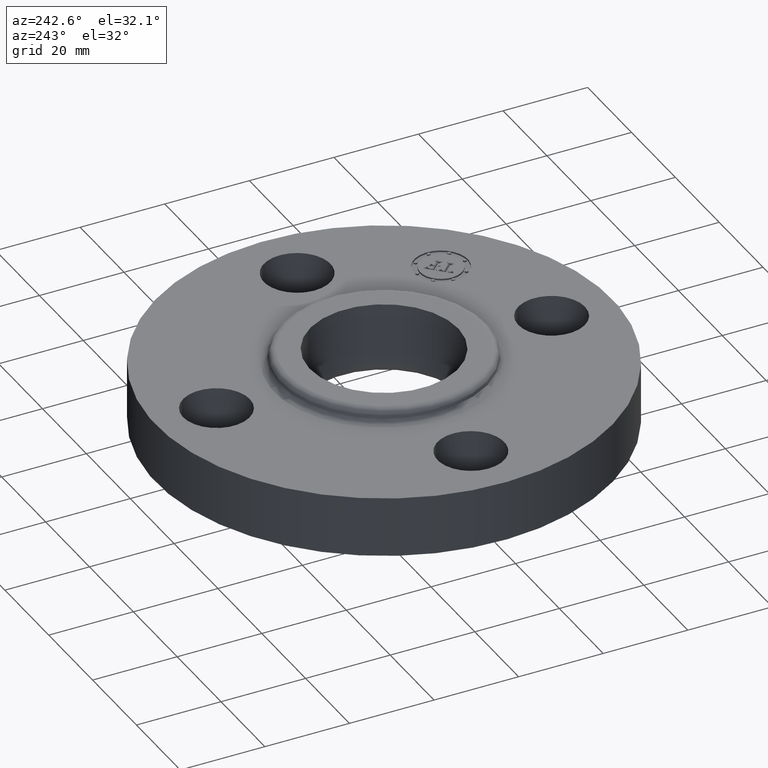
[diagram: clean part render]
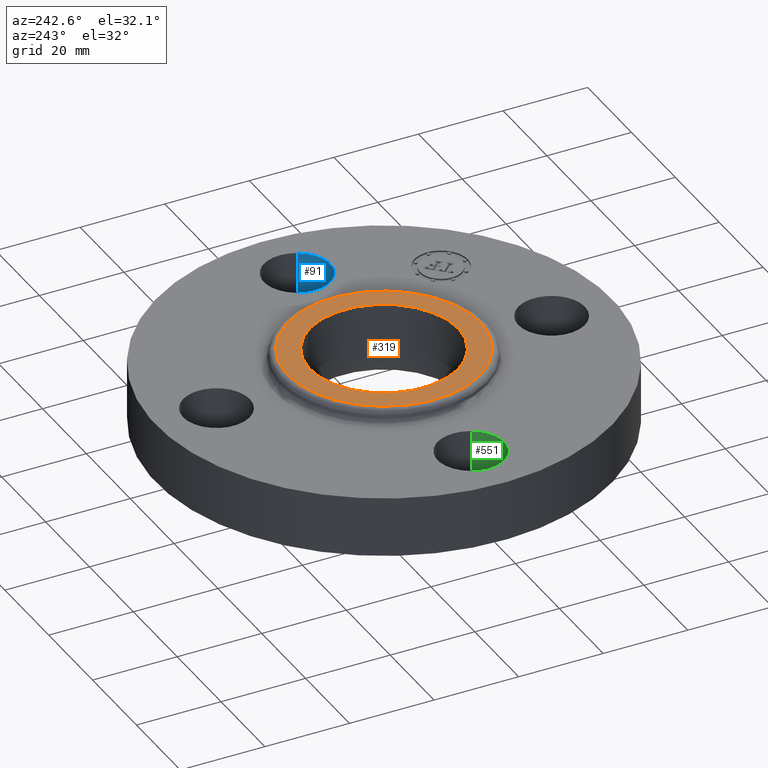
[diagram: same view with three faces highlighted in distinct colors, each labeled with its STEP entity id]
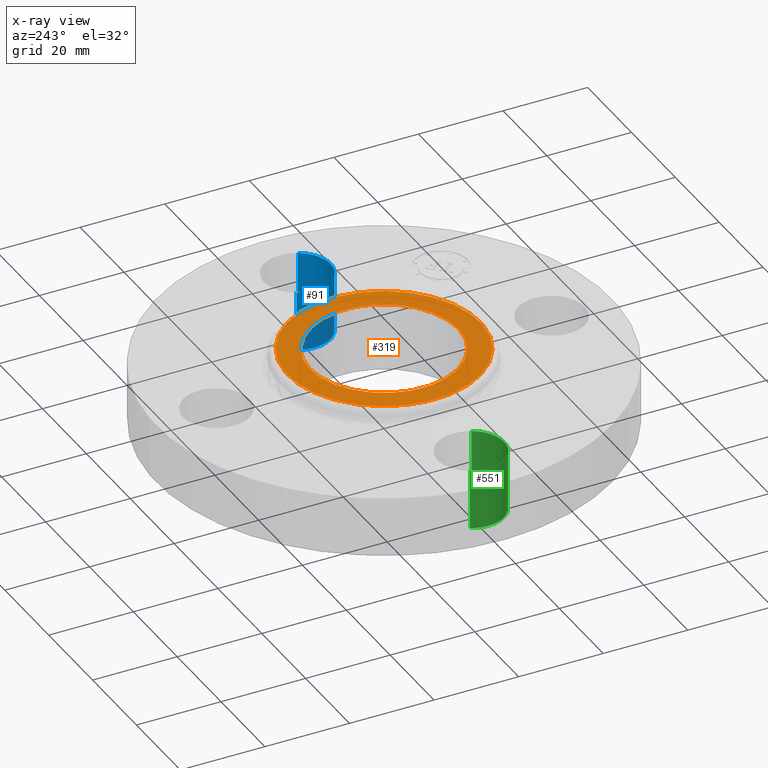
[diagram: x-ray of the same camera — body ghosted, the three highlighted faces saturated]
A machine part, auxiliary view with three faces highlighted in distinct colors.
The next image is the same camera in x-ray (body ghosted, the three faces saturated) — at least one of them is partly hidden behind the body in this view.
Their STEP definitions:

[orange] entity #319 — the highlighted planar face has unit normal (0, 0, -1).
#263=AXIS2_PLACEMENT_3D('Circle Axis2P3D',#261,#262,$) ;
#282=AXIS2_PLACEMENT_3D('Circle Axis2P3D',#280,#281,$) ;
#295=AXIS2_PLACEMENT_3D('Plane Axis2P3D',#292,#293,#294) ;
#303=AXIS2_PLACEMENT_3D('Circle Axis2P3D',#301,#302,$) ;
#312=AXIS2_PLACEMENT_3D('Circle Axis2P3D',#310,#311,$) ;
#258=CARTESIAN_POINT('Vertex',(0.42991598939,0.786955939946,0.690000000003)) ;
#261=CARTESIAN_POINT('Axis2P3D Location',(0.,0.,0.690000000003)) ;
#265=CARTESIAN_POINT('Vertex',(-0.42991598939,-0.786955939946,0.690000000003)) ;
#280=CARTESIAN_POINT('Axis2P3D Location',(0.,0.,0.690000000003)) ;
#292=CARTESIAN_POINT('Axis2P3D Location',(0.,0.896731514641,0.690000000003)) ;
#301=CARTESIAN_POINT('Axis2P3D Location',(0.,0.,0.690000000003)) ;
#305=CARTESIAN_POINT('Vertex',(-0.330803621638,-0.605531967707,0.690000000003)) ;
#307=CARTESIAN_POINT('Vertex',(0.330803621638,0.605531967707,0.690000000003)) ;
#310=CARTESIAN_POINT('Axis2P3D Location',(0.,0.,0.690000000003)) ;
#262=DIRECTION('Axis2P3D Direction',(0.,0.,-0.0393700787402)) ;
#281=DIRECTION('Axis2P3D Direction',(0.,0.,-0.0393700787402)) ;
#293=DIRECTION('Axis2P3D Direction',(0.,0.,-0.0393700787402)) ;
#294=DIRECTION('Axis2P3D XDirection',(0.0393700787402,0.,0.)) ;
#302=DIRECTION('Axis2P3D Direction',(0.,0.,-0.0393700787402)) ;
#311=DIRECTION('Axis2P3D Direction',(0.,0.,-0.0393700787402)) ;
#298=ORIENTED_EDGE('',*,*,#267,.F.) ;
#299=ORIENTED_EDGE('',*,*,#284,.F.) ;
#316=ORIENTED_EDGE('',*,*,#309,.T.) ;
#317=ORIENTED_EDGE('',*,*,#314,.T.) ;
#318=FACE_BOUND('',#315,.T.) ;
#319=ADVANCED_FACE('PartBody',(#300,#318),#296,.F.) ;
#264=CIRCLE('generated circle',#263,0.896731514641) ;
#283=CIRCLE('generated circle',#282,0.896731514641) ;
#304=CIRCLE('generated circle',#303,0.690000000003) ;
#313=CIRCLE('generated circle',#312,0.690000000003) ;
#267=EDGE_CURVE('',#259,#266,#264,.T.) ;
#284=EDGE_CURVE('',#266,#259,#283,.T.) ;
#309=EDGE_CURVE('',#306,#308,#304,.T.) ;
#314=EDGE_CURVE('',#308,#306,#313,.T.) ;
#297=EDGE_LOOP('',(#298,#299)) ;
#315=EDGE_LOOP('',(#316,#317)) ;
#300=FACE_OUTER_BOUND('',#297,.T.) ;
#296=PLANE('',#295) ;
#259=VERTEX_POINT('',#258) ;
#266=VERTEX_POINT('',#265) ;
#306=VERTEX_POINT('',#305) ;
#308=VERTEX_POINT('',#307) ;

[blue] entity #91 — the highlighted cylindrical surface (partial cylindrical patch) has radius 7.874 mm, axis along (0, -0, -1).
#38=AXIS2_PLACEMENT_3D('Cylinder Axis2P3D',#35,#36,#37) ;
#77=AXIS2_PLACEMENT_3D('Circle Axis2P3D',#75,#76,$) ;
#82=AXIS2_PLACEMENT_3D('Circle Axis2P3D',#80,#81,$) ;
#35=CARTESIAN_POINT('Axis2P3D Location',(1.56000000001,0.,0.556062992128)) ;
#40=CARTESIAN_POINT('Line Origine',(1.28794940582,0.148621916968,0.280000000001)) ;
#44=CARTESIAN_POINT('Vertex',(1.28794940582,0.148621916968,0.)) ;
#46=CARTESIAN_POINT('Vertex',(1.28794940582,0.148621916968,0.560000000002)) ;
#53=CARTESIAN_POINT('Vertex',(1.83205059419,-0.148621916968,0.)) ;
#56=CARTESIAN_POINT('Line Origine',(1.83205059419,-0.148621916968,0.280000000001)) ;
#60=CARTESIAN_POINT('Vertex',(1.83205059419,-0.148621916968,0.560000000002)) ;
#75=CARTESIAN_POINT('Axis2P3D Location',(1.56000000001,0.,0.)) ;
#80=CARTESIAN_POINT('Axis2P3D Location',(1.56000000001,0.,0.560000000002)) ;
#36=DIRECTION('Axis2P3D Direction',(0.,-0.,-0.0393700787402)) ;
#37=DIRECTION('Axis2P3D XDirection',(0.0345504945626,-0.0188750212049,0.)) ;
#41=DIRECTION('Vector Direction',(0.,0.,-0.0393700787402)) ;
#57=DIRECTION('Vector Direction',(0.,0.,-0.0393700787402)) ;
#76=DIRECTION('Axis2P3D Direction',(0.,-0.,-0.0393700787402)) ;
#81=DIRECTION('Axis2P3D Direction',(0.,-0.,-0.0393700787402)) ;
#42=VECTOR('Line Direction',#41,0.0393700787402) ;
#58=VECTOR('Line Direction',#57,0.0393700787402) ;
#86=ORIENTED_EDGE('',*,*,#62,.F.) ;
#87=ORIENTED_EDGE('',*,*,#79,.T.) ;
#88=ORIENTED_EDGE('',*,*,#48,.T.) ;
#89=ORIENTED_EDGE('',*,*,#84,.F.) ;
#91=ADVANCED_FACE('PartBody',(#90),#39,.F.) ;
#78=CIRCLE('generated circle',#77,0.310000000001) ;
#83=CIRCLE('generated circle',#82,0.310000000001) ;
#39=CYLINDRICAL_SURFACE('generated cylinder',#38,0.310000000001) ;
#48=EDGE_CURVE('',#45,#47,#43,.F.) ;
#62=EDGE_CURVE('',#54,#61,#59,.F.) ;
#79=EDGE_CURVE('',#54,#45,#78,.T.) ;
#84=EDGE_CURVE('',#61,#47,#83,.T.) ;
#85=EDGE_LOOP('',(#86,#87,#88,#89)) ;
#90=FACE_OUTER_BOUND('',#85,.T.) ;
#43=LINE('Line',#40,#42) ;
#59=LINE('Line',#56,#58) ;
#45=VERTEX_POINT('',#44) ;
#47=VERTEX_POINT('',#46) ;
#54=VERTEX_POINT('',#53) ;
#61=VERTEX_POINT('',#60) ;

[green] entity #551 — the highlighted cylindrical surface (partial cylindrical patch) has radius 7.874 mm, axis along (-0, 0, -1).
#443=AXIS2_PLACEMENT_3D('Circle Axis2P3D',#441,#442,$) ;
#524=AXIS2_PLACEMENT_3D('Cylinder Axis2P3D',#521,#522,#523) ;
#542=AXIS2_PLACEMENT_3D('Circle Axis2P3D',#540,#541,$) ;
#441=CARTESIAN_POINT('Axis2P3D Location',(-1.56000000001,-2.79741234551E-016,0.)) ;
#445=CARTESIAN_POINT('Vertex',(-1.28794940582,-0.148621916968,0.)) ;
#447=CARTESIAN_POINT('Vertex',(-1.83205059419,0.148621916968,0.)) ;
#521=CARTESIAN_POINT('Axis2P3D Location',(-1.56000000001,-1.91044900668E-016,0.556062992128)) ;
#526=CARTESIAN_POINT('Line Origine',(-1.28794940582,-0.148621916968,0.280000000001)) ;
#530=CARTESIAN_POINT('Vertex',(-1.28794940582,-0.148621916968,0.560000000002)) ;
#533=CARTESIAN_POINT('Line Origine',(-1.83205059419,0.148621916968,0.280000000001)) ;
#537=CARTESIAN_POINT('Vertex',(-1.83205059419,0.148621916968,0.560000000002)) ;
#540=CARTESIAN_POINT('Axis2P3D Location',(-1.56000000001,-1.91044900668E-016,0.560000000002)) ;
#442=DIRECTION('Axis2P3D Direction',(0.,0.,-0.0393700787402)) ;
#522=DIRECTION('Axis2P3D Direction',(-0.,0.,-0.0393700787402)) ;
#523=DIRECTION('Axis2P3D XDirection',(-0.0345504945626,0.0188750212049,0.)) ;
#527=DIRECTION('Vector Direction',(0.,0.,-0.0393700787402)) ;
#534=DIRECTION('Vector Direction',(0.,0.,-0.0393700787402)) ;
#541=DIRECTION('Axis2P3D Direction',(-0.,0.,-0.0393700787402)) ;
#528=VECTOR('Line Direction',#527,0.0393700787402) ;
#535=VECTOR('Line Direction',#534,0.0393700787402) ;
#546=ORIENTED_EDGE('',*,*,#532,.F.) ;
#547=ORIENTED_EDGE('',*,*,#449,.T.) ;
#548=ORIENTED_EDGE('',*,*,#539,.T.) ;
#549=ORIENTED_EDGE('',*,*,#544,.F.) ;
#551=ADVANCED_FACE('PartBody',(#550),#525,.F.) ;
#444=CIRCLE('generated circle',#443,0.310000000001) ;
#543=CIRCLE('generated circle',#542,0.310000000001) ;
#525=CYLINDRICAL_SURFACE('generated cylinder',#524,0.310000000001) ;
#449=EDGE_CURVE('',#446,#448,#444,.T.) ;
#532=EDGE_CURVE('',#446,#531,#529,.F.) ;
#539=EDGE_CURVE('',#448,#538,#536,.F.) ;
#544=EDGE_CURVE('',#531,#538,#543,.T.) ;
#545=EDGE_LOOP('',(#546,#547,#548,#549)) ;
#550=FACE_OUTER_BOUND('',#545,.T.) ;
#529=LINE('Line',#526,#528) ;
#536=LINE('Line',#533,#535) ;
#446=VERTEX_POINT('',#445) ;
#448=VERTEX_POINT('',#447) ;
#531=VERTEX_POINT('',#530) ;
#538=VERTEX_POINT('',#537) ;